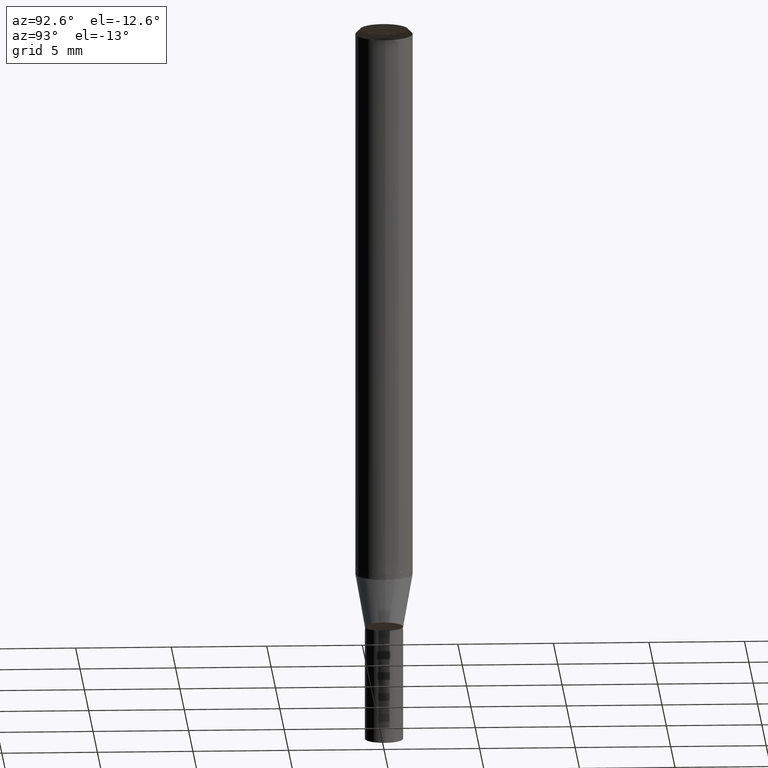
[diagram: clean part render]
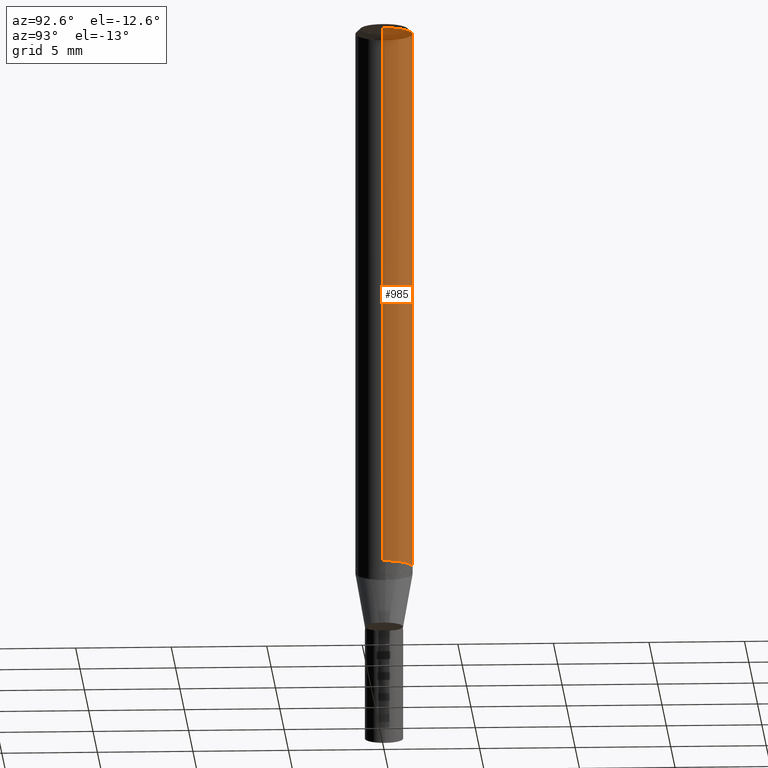
[diagram: same view with one face highlighted and labeled with its STEP entity id]
A machine part, auxiliary view. The second image highlights one B-rep face of the part: STEP entity #985.
In plain terms, the highlighted face is a freeform B-spline surface patch.
Its self-contained STEP definition (entity closure, byte-faithful):
#767=CARTESIAN_POINT('',(1.5,0.0,0.0));
#768=CARTESIAN_POINT('',(1.5,1.5,0.0));
#769=CARTESIAN_POINT('',(0.0,1.5,0.0));
#770=CARTESIAN_POINT('',(-1.5,1.5,0.0));
#771=CARTESIAN_POINT('',(-1.5,0.0,0.0));
#772=CARTESIAN_POINT('',(1.5,0.0,28.55));
#773=CARTESIAN_POINT('',(1.5,1.5,28.55));
#774=CARTESIAN_POINT('',(0.0,1.5,28.55));
#775=CARTESIAN_POINT('',(-1.5,1.5,28.55));
#776=CARTESIAN_POINT('',(-1.5,0.0,28.55));
#966=(
BOUNDED_SURFACE()
B_SPLINE_SURFACE(1,2,(
(#767,#768,#769,#770,#771),
(#772,#773,#774,#775,#776)
), .UNSPECIFIED.,.F.,.F.,.F.)
B_SPLINE_SURFACE_WITH_KNOTS((2,2),(3,2,3),(
0.0,1.0),(
0.0,0.5,1.0), .UNSPECIFIED.)
GEOMETRIC_REPRESENTATION_ITEM()
RATIONAL_B_SPLINE_SURFACE(((1.0,0.707106781187,1.0,0.707106781187,1.0),
(1.0,0.707106781187,1.0,0.707106781187,1.0)
))
REPRESENTATION_ITEM('')
SURFACE()
);
#967=(
BOUNDED_CURVE()
B_SPLINE_CURVE(2,(#771,#770,#769,#768,#767),.UNSPECIFIED.,.F.,.F.)
B_SPLINE_CURVE_WITH_KNOTS((3,2,3),
(0.0,0.5,1.0),.UNSPECIFIED.)
CURVE()
GEOMETRIC_REPRESENTATION_ITEM()
RATIONAL_B_SPLINE_CURVE((1.0,0.707106781187,1.0,0.707106781187,1.0))
REPRESENTATION_ITEM('')
);
#968=(
BOUNDED_CURVE()
B_SPLINE_CURVE(1,(#767,#772),.UNSPECIFIED.,.F.,.F.)
B_SPLINE_CURVE_WITH_KNOTS((2,2),
(0.0,1.0),.UNSPECIFIED.)
CURVE()
GEOMETRIC_REPRESENTATION_ITEM()
RATIONAL_B_SPLINE_CURVE((1.0,1.0))
REPRESENTATION_ITEM('')
);
#969=(
BOUNDED_CURVE()
B_SPLINE_CURVE(2,(#772,#773,#774,#775,#776),.UNSPECIFIED.,.F.,.F.)
B_SPLINE_CURVE_WITH_KNOTS((3,2,3),
(0.0,0.5,1.0),.UNSPECIFIED.)
CURVE()
GEOMETRIC_REPRESENTATION_ITEM()
RATIONAL_B_SPLINE_CURVE((1.0,0.707106781187,1.0,0.707106781187,1.0))
REPRESENTATION_ITEM('')
);
#970=(
BOUNDED_CURVE()
B_SPLINE_CURVE(1,(#776,#771),.UNSPECIFIED.,.F.,.F.)
B_SPLINE_CURVE_WITH_KNOTS((2,2),
(0.0,1.0),.UNSPECIFIED.)
CURVE()
GEOMETRIC_REPRESENTATION_ITEM()
RATIONAL_B_SPLINE_CURVE((1.0,1.0))
REPRESENTATION_ITEM('')
);
#971=VERTEX_POINT('',#767);
#972=VERTEX_POINT('',#771);
#973=VERTEX_POINT('',#772);
#974=VERTEX_POINT('',#776);
#975=EDGE_CURVE('',#972,#971,#967,.T.);
#976=EDGE_CURVE('',#971,#973,#968,.T.);
#977=EDGE_CURVE('',#973,#974,#969,.T.);
#978=EDGE_CURVE('',#974,#972,#970,.T.);
#979=ORIENTED_EDGE('',*,*,#975,.T.);
#980=ORIENTED_EDGE('',*,*,#976,.T.);
#981=ORIENTED_EDGE('',*,*,#977,.T.);
#982=ORIENTED_EDGE('',*,*,#978,.T.);
#983=EDGE_LOOP('',(#979,#980,#981,#982));
#984=FACE_OUTER_BOUND('',#983,.T.);
#985=ADVANCED_FACE('',(#984),#966,.T.);